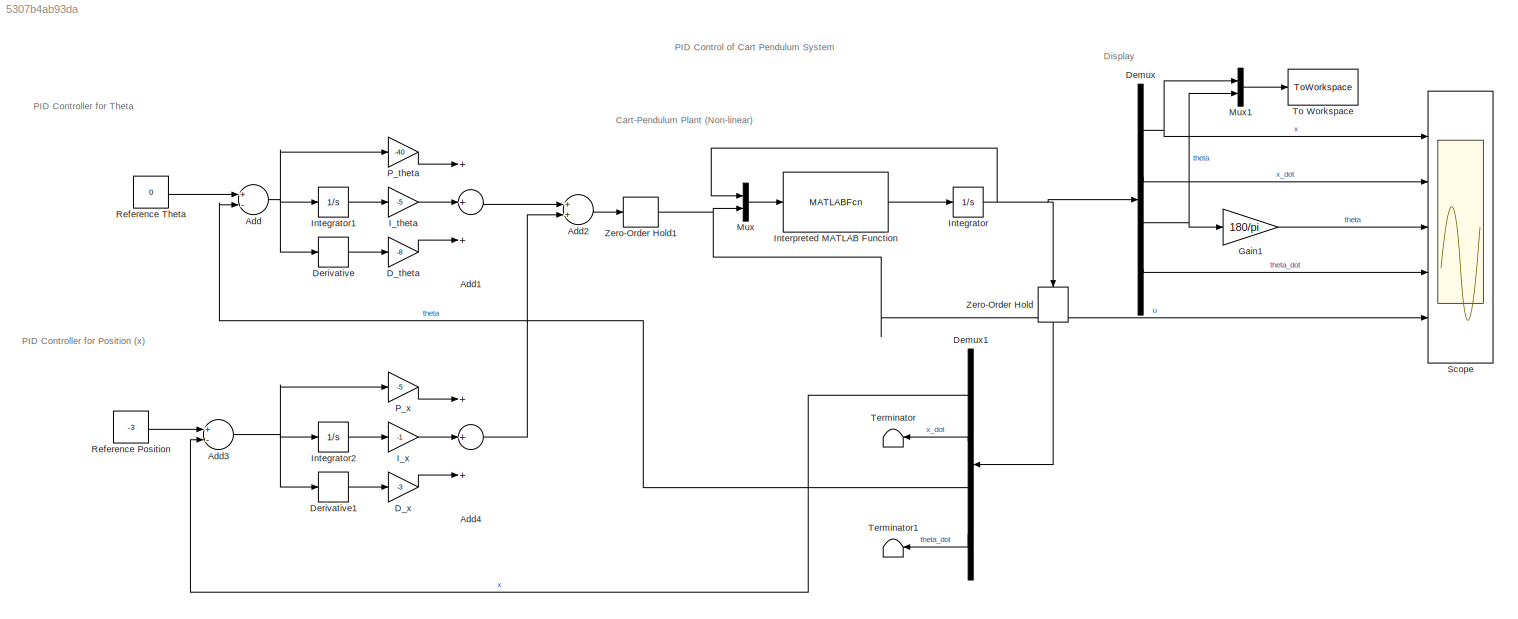
MODEL slx_5307b4ab93da
KIND model
CONFIG AbsTol = auto
CONFIG EnableMultiTasking = off
CONFIG FixedStep = auto
CONFIG InitFcn = run Initialize.m
CONFIG MaxStep = auto
CONFIG MinStep = auto
CONFIG RelTol = 1e-3
CONFIG SampleTimeConstraint = Unconstrained
CONFIG Solver = FixedStepAuto
CONFIG SolverName = FixedStepAuto
CONFIG StartTime = 0.0
CONFIG StopFcn = run Visualization.m
CONFIG StopTime = 20
BLOCK [Sum] Add
  InputSameDT = off
  Inputs = +-
  OutDataTypeStr = Inherit: Inherit via internal rule
  Ports = [2, 1]
  SaturateOnIntegerOverflow = off
BLOCK [Sum] Add1
  InputSameDT = off
  Inputs = +++
  OutDataTypeStr = Inherit: Inherit via internal rule
  Ports = [3, 1]
  SaturateOnIntegerOverflow = off
BLOCK [Sum] Add2
  InputSameDT = off
  OutDataTypeStr = Inherit: Inherit via internal rule
  Ports = [2, 1]
  SaturateOnIntegerOverflow = off
BLOCK [Sum] Add3
  InputSameDT = off
  Inputs = +-
  OutDataTypeStr = Inherit: Inherit via internal rule
  Ports = [2, 1]
  SaturateOnIntegerOverflow = off
BLOCK [Sum] Add4
  InputSameDT = off
  Inputs = +++
  OutDataTypeStr = Inherit: Inherit via internal rule
  Ports = [3, 1]
  SaturateOnIntegerOverflow = off
BLOCK [Gain] D_theta
  Gain = -8
  OutDataTypeStr = Inherit: Inherit via internal rule
  ParamDataTypeStr = Inherit: Inherit via internal rule
  SaturateOnIntegerOverflow = off
BLOCK [Gain] D_x
  Gain = -3
  OutDataTypeStr = Inherit: Inherit via internal rule
  ParamDataTypeStr = Inherit: Inherit via internal rule
  SaturateOnIntegerOverflow = off
BLOCK [Demux] Demux
  DisplayOption = bar
  Ports = [1, 4]
BLOCK [Demux] Demux1
  DisplayOption = bar
  Ports = [1, 4]
BLOCK [Derivative] Derivative
BLOCK [Derivative] Derivative1
BLOCK [Gain] Gain1
  Gain = 180/pi
  OutDataTypeStr = Inherit: Inherit via internal rule
  ParamDataTypeStr = Inherit: Inherit via internal rule
  SaturateOnIntegerOverflow = off
BLOCK [Gain] I_theta
  Gain = -5
  OutDataTypeStr = Inherit: Inherit via internal rule
  ParamDataTypeStr = Inherit: Inherit via internal rule
  SaturateOnIntegerOverflow = off
BLOCK [Gain] I_x
  Gain = -1
  OutDataTypeStr = Inherit: Inherit via internal rule
  ParamDataTypeStr = Inherit: Inherit via internal rule
  SaturateOnIntegerOverflow = off
BLOCK [Integrator] Integrator
  InitialCondition = x0
  Ports = [1, 1]
BLOCK [Integrator] Integrator1
  Ports = [1, 1]
BLOCK [Integrator] Integrator2
  Ports = [1, 1]
BLOCK [MATLABFcn] Interpreted MATLAB Function
  MATLABFcn = CartPendStateDerivative
  Ports = [1, 1]
BLOCK [Mux] Mux
  DisplayOption = bar
  Inputs = 2
  Ports = [2, 1]
BLOCK [Mux] Mux1
  DisplayOption = bar
  Inputs = 2
  Ports = [2, 1]
BLOCK [Gain] P_theta
  Gain = -40
  OutDataTypeStr = Inherit: Inherit via internal rule
  ParamDataTypeStr = Inherit: Inherit via internal rule
  SaturateOnIntegerOverflow = off
BLOCK [Gain] P_x
  Gain = -5
  OutDataTypeStr = Inherit: Inherit via internal rule
  ParamDataTypeStr = Inherit: Inherit via internal rule
  SaturateOnIntegerOverflow = off
BLOCK [Constant] Reference Position
  Value = -3
BLOCK [Constant] Reference Theta
  Value = 0
BLOCK [Scope] Scope
  Floating = off
  NumInputPorts = 5
  Ports = [5]
  ScopeSpecificationString = Simulink.scopes.TimeScopeBlockCfg('CurrentConfiguration', extmgr.ConfigurationSet(extmgr.Configuration('Core','General UI',true),extmgr.Configuration('Core','Source UI',true),extmgr.Configuration('Sources','WiredSimulink',true),extmgr.Configuration('Visuals','Time Domain',true,'SerializedDisplays',{struct('MinYLimReal','-5.69741','MaxYLimReal','0.85495','YLabelReal','','MinYLimMag','0.00000','MaxY...<+5497ch>
BLOCK [Terminator] Terminator
BLOCK [Terminator] Terminator1
BLOCK [ToWorkspace] To Workspace
  FixptAsFi = on
  MaxDataPoints = inf
  Ports = [1]
  SampleTime = -1
  SaveFormat = Timeseries
  VariableName = states
BLOCK [ZeroOrderHold] Zero-Order Hold
  SampleTime = Ts
BLOCK [ZeroOrderHold] Zero-Order Hold1
  SampleTime = Ts
ANNOTATION (root): PID Control of Cart Pendulum System
ANNOTATION (root): Cart-Pendulum Plant (Non-linear)
ANNOTATION (root): Display
ANNOTATION (root): PID Controller for Position (x)
ANNOTATION (root): PID Controller for Theta
LINE Add1:1 -> Add2:1
LINE Add2:1 -> Zero-Order Hold1:1
NET Add3:1 -> Derivative1:1, Integrator2:1, P_x:1
LINE Add4:1 -> Add2:2
NET Add:1 -> Derivative:1, Integrator1:1, P_theta:1
LINE D_theta:1 -> Add1:3
LINE D_x:1 -> Add4:3
LINE Demux1:1 -> Add3:2
LINE Demux1:2 -> Terminator:1
LINE Demux1:3 -> Add:2
LINE Demux1:4 -> Terminator1:1
NET Demux:1 -> Mux1:1, Scope:1
LINE Demux:2 -> Scope:2
NET Demux:3 -> Gain1:1, Mux1:2
LINE Demux:4 -> Scope:4
LINE Derivative1:1 -> D_x:1
LINE Derivative:1 -> D_theta:1
LINE Gain1:1 -> Scope:3
LINE I_theta:1 -> Add1:2
LINE I_x:1 -> Add4:2
LINE Integrator1:1 -> I_theta:1
LINE Integrator2:1 -> I_x:1
NET Integrator:1 -> Demux:1, Mux:1, Zero-Order Hold:1
LINE Interpreted MATLAB Function:1 -> Integrator:1
LINE Mux1:1 -> To Workspace:1
LINE Mux:1 -> Interpreted MATLAB Function:1
LINE P_theta:1 -> Add1:1
LINE P_x:1 -> Add4:1
LINE Reference Position:1 -> Add3:1
LINE Reference Theta:1 -> Add:1
NET Zero-Order Hold1:1 -> Mux:2, Scope:5
LINE Zero-Order Hold:1 -> Demux1:1
note: NET lines group one-source signal fan-out (src -> all destinations, sorted); 1:1 wires keep LINE
